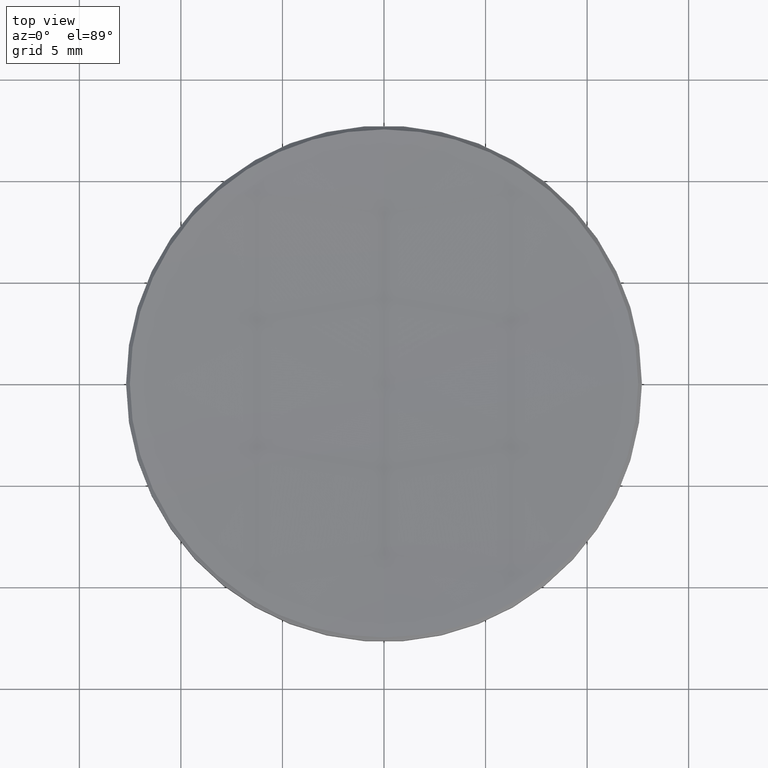
[diagram: clean part render]
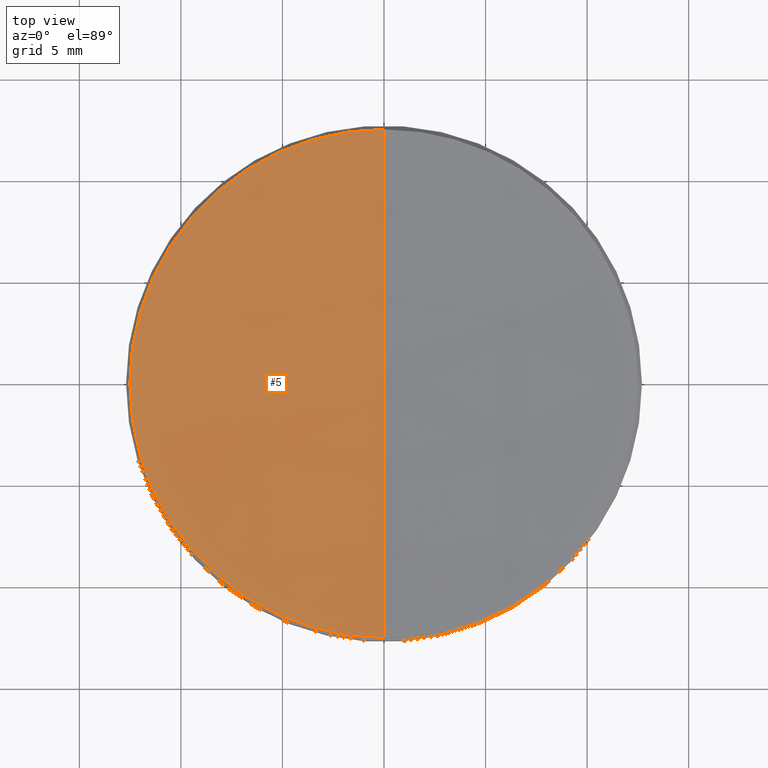
[diagram: same view with one face highlighted and labeled with its STEP entity id]
A machine part, top view. The second image highlights one B-rep face of the part: STEP entity #5.
In plain terms, the highlighted spherical surface has radius 182.19 mm.
Its self-contained STEP definition (entity closure, byte-faithful):
#3 = EDGE_LOOP ( 'NONE', ( #92, #139, #327, #42 ) ) ;
#5 = ADVANCED_FACE ( 'NONE', ( #67 ), #119, .F. ) ;
#8 = EDGE_CURVE ( 'NONE', #210, #113, #48, .T. ) ;
#39 = DIRECTION ( 'NONE',  ( -1.000000000000000000, 0.000000000000000000, 0.000000000000000000 ) ) ;
#42 = ORIENTED_EDGE ( 'NONE', *, *, #76, .T. ) ;
#47 = DIRECTION ( 'NONE',  ( -0.000000000000000000, -0.000000000000000000, 1.000000000000000000 ) ) ;
#48 = CIRCLE ( 'NONE', #120, 182.1899999999999977 ) ;
#58 = CARTESIAN_POINT ( 'NONE',  ( 0.000000000000000000, 0.000000000000000000, 187.7468186791724918 ) ) ;
#64 = AXIS2_PLACEMENT_3D ( 'NONE', #58, #136, #109 ) ;
#67 = FACE_OUTER_BOUND ( 'NONE', #3, .T. ) ;
#76 = EDGE_CURVE ( 'NONE', #313, #113, #310, .T. ) ;
#92 = ORIENTED_EDGE ( 'NONE', *, *, #8, .F. ) ;
#94 = CARTESIAN_POINT ( 'NONE',  ( 0.000000000000000000, 1.115592001683281265E-14, 5.556818679172486952 ) ) ;
#101 = CIRCLE ( 'NONE', #64, 182.1899999999999977 ) ;
#109 = DIRECTION ( 'NONE',  ( 0.000000000000000000, 0.000000000000000000, -1.000000000000000000 ) ) ;
#111 = DIRECTION ( 'NONE',  ( 0.000000000000000000, 1.000000000000000000, 0.000000000000000000 ) ) ;
#113 = VERTEX_POINT ( 'NONE', #172 ) ;
#114 = AXIS2_PLACEMENT_3D ( 'NONE', #117, #39, #111 ) ;
#117 = CARTESIAN_POINT ( 'NONE',  ( 0.000000000000000000, 0.000000000000000000, 187.7468186791724918 ) ) ;
#119 = SPHERICAL_SURFACE ( 'NONE', #114, 182.1899999999999977 ) ;
#120 = AXIS2_PLACEMENT_3D ( 'NONE', #221, #326, #323 ) ;
#124 = CARTESIAN_POINT ( 'NONE',  ( 0.000000000000000000, 0.000000000000000000, 5.987027680885187664 ) ) ;
#130 = EDGE_CURVE ( 'NONE', #273, #313, #203, .T. ) ;
#136 = DIRECTION ( 'NONE',  ( 1.000000000000000000, 0.000000000000000000, 0.000000000000000000 ) ) ;
#139 = ORIENTED_EDGE ( 'NONE', *, *, #278, .T. ) ;
#164 = AXIS2_PLACEMENT_3D ( 'NONE', #124, #330, #302 ) ;
#167 = CARTESIAN_POINT ( 'NONE',  ( -12.51297231911478569, 0.000000000000000000, 5.987027680885187664 ) ) ;
#172 = CARTESIAN_POINT ( 'NONE',  ( -1.532397149842306047E-15, -12.51297231911454411, 5.987027680885187664 ) ) ;
#175 = DIRECTION ( 'NONE',  ( 1.000000000000000000, 0.000000000000000000, 0.000000000000000000 ) ) ;
#203 = CIRCLE ( 'NONE', #240, 12.51297231911478569 ) ;
#210 = VERTEX_POINT ( 'NONE', #94 ) ;
#221 = CARTESIAN_POINT ( 'NONE',  ( 0.000000000000000000, 0.000000000000000000, 187.7468186791724918 ) ) ;
#240 = AXIS2_PLACEMENT_3D ( 'NONE', #250, #47, #175 ) ;
#250 = CARTESIAN_POINT ( 'NONE',  ( 0.000000000000000000, 0.000000000000000000, 5.987027680885187664 ) ) ;
#273 = VERTEX_POINT ( 'NONE', #321 ) ;
#278 = EDGE_CURVE ( 'NONE', #210, #273, #101, .T. ) ;
#302 = DIRECTION ( 'NONE',  ( 1.000000000000000000, 0.000000000000000000, 0.000000000000000000 ) ) ;
#310 = CIRCLE ( 'NONE', #164, 12.51297231911478569 ) ;
#313 = VERTEX_POINT ( 'NONE', #167 ) ;
#321 = CARTESIAN_POINT ( 'NONE',  ( 0.000000000000000000, 12.51297231911454411, 5.987027680885187664 ) ) ;
#323 = DIRECTION ( 'NONE',  ( -1.224646799147352961E-16, -1.000000000000000000, 0.000000000000000000 ) ) ;
#326 = DIRECTION ( 'NONE',  ( -1.000000000000000000, 1.224646799147353207E-16, 0.000000000000000000 ) ) ;
#327 = ORIENTED_EDGE ( 'NONE', *, *, #130, .T. ) ;
#330 = DIRECTION ( 'NONE',  ( -0.000000000000000000, -0.000000000000000000, 1.000000000000000000 ) ) ;